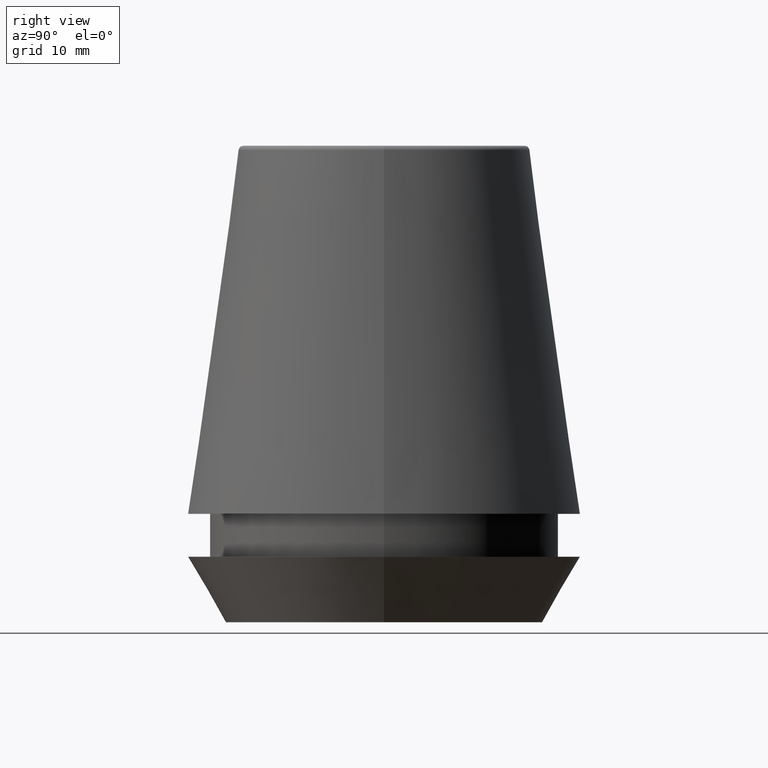
[diagram: clean part render]
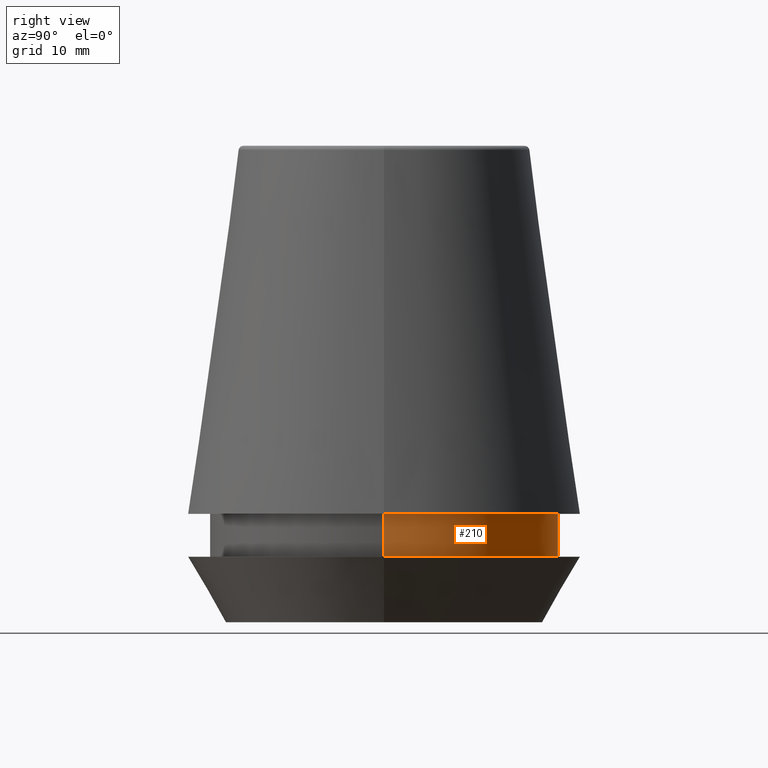
[diagram: same view with one face highlighted and labeled with its STEP entity id]
A machine part, right view. The second image highlights one B-rep face of the part: STEP entity #210.
In plain terms, the highlighted cylindrical surface (partial cylindrical patch) has radius 14.6 mm, axis along (-0, -0, 1).
Its self-contained STEP definition (entity closure, byte-faithful):
#13 = DIRECTION ( 'NONE',  ( 1.000000000000000000, 0.0000000000000000000, 0.0000000000000000000 ) ) ;
#16 = CARTESIAN_POINT ( 'NONE',  ( 14.60000000000000000, 0.0000000000000000000, 5.500000000000005300 ) ) ;
#19 = DIRECTION ( 'NONE',  ( 1.000000000000000000, 0.0000000000000000000, 0.0000000000000000000 ) ) ;
#33 = CYLINDRICAL_SURFACE ( 'NONE', #231, 14.60000000000000000 ) ;
#55 = AXIS2_PLACEMENT_3D ( 'NONE', #112, #142, #265 ) ;
#58 = VERTEX_POINT ( 'NONE', #233 ) ;
#63 = LINE ( 'NONE', #84, #214 ) ;
#84 = CARTESIAN_POINT ( 'NONE',  ( -14.60000000000000000, 1.787984326755135800E-015, 101.8074564848000400 ) ) ;
#91 = ORIENTED_EDGE ( 'NONE', *, *, #217, .T. ) ;
#103 = ORIENTED_EDGE ( 'NONE', *, *, #354, .T. ) ;
#112 = CARTESIAN_POINT ( 'NONE',  ( 0.0000000000000000000, 0.0000000000000000000, 9.099999999999997900 ) ) ;
#138 = CIRCLE ( 'NONE', #55, 14.60000000000000000 ) ;
#142 = DIRECTION ( 'NONE',  ( -0.0000000000000000000, -0.0000000000000000000, 1.000000000000000000 ) ) ;
#144 = CARTESIAN_POINT ( 'NONE',  ( -14.60000000000000000, 1.787984326755135800E-015, 9.099999999999997900 ) ) ;
#156 = VERTEX_POINT ( 'NONE', #16 ) ;
#160 = EDGE_LOOP ( 'NONE', ( #103, #91, #304, #339 ) ) ;
#164 = DIRECTION ( 'NONE',  ( -0.0000000000000000000, -0.0000000000000000000, 1.000000000000000000 ) ) ;
#185 = VECTOR ( 'NONE', #338, 1000.000000000000000 ) ;
#197 = CARTESIAN_POINT ( 'NONE',  ( -14.60000000000000000, 1.787984326755135800E-015, 5.500000000000005300 ) ) ;
#200 = CIRCLE ( 'NONE', #302, 14.60000000000000000 ) ;
#210 = ADVANCED_FACE ( 'NONE', ( #220 ), #33, .T. ) ;
#214 = VECTOR ( 'NONE', #370, 1000.000000000000000 ) ;
#217 = EDGE_CURVE ( 'NONE', #274, #315, #63, .T. ) ;
#220 = FACE_OUTER_BOUND ( 'NONE', #160, .T. ) ;
#231 = AXIS2_PLACEMENT_3D ( 'NONE', #363, #164, #19 ) ;
#233 = CARTESIAN_POINT ( 'NONE',  ( 14.60000000000000000, 0.0000000000000000000, 9.099999999999997900 ) ) ;
#234 = EDGE_CURVE ( 'NONE', #58, #315, #138, .T. ) ;
#245 = LINE ( 'NONE', #343, #185 ) ;
#265 = DIRECTION ( 'NONE',  ( 1.000000000000000000, 0.0000000000000000000, 0.0000000000000000000 ) ) ;
#274 = VERTEX_POINT ( 'NONE', #197 ) ;
#302 = AXIS2_PLACEMENT_3D ( 'NONE', #337, #371, #13 ) ;
#304 = ORIENTED_EDGE ( 'NONE', *, *, #234, .F. ) ;
#315 = VERTEX_POINT ( 'NONE', #144 ) ;
#337 = CARTESIAN_POINT ( 'NONE',  ( 0.0000000000000000000, 0.0000000000000000000, 5.500000000000005300 ) ) ;
#338 = DIRECTION ( 'NONE',  ( -0.0000000000000000000, -0.0000000000000000000, 1.000000000000000000 ) ) ;
#339 = ORIENTED_EDGE ( 'NONE', *, *, #382, .F. ) ;
#343 = CARTESIAN_POINT ( 'NONE',  ( 14.60000000000000000, 0.0000000000000000000, 101.8074564848000400 ) ) ;
#354 = EDGE_CURVE ( 'NONE', #156, #274, #200, .T. ) ;
#363 = CARTESIAN_POINT ( 'NONE',  ( 0.0000000000000000000, 0.0000000000000000000, 101.8074564848000400 ) ) ;
#370 = DIRECTION ( 'NONE',  ( -0.0000000000000000000, -0.0000000000000000000, 1.000000000000000000 ) ) ;
#371 = DIRECTION ( 'NONE',  ( -0.0000000000000000000, -0.0000000000000000000, 1.000000000000000000 ) ) ;
#382 = EDGE_CURVE ( 'NONE', #156, #58, #245, .T. ) ;